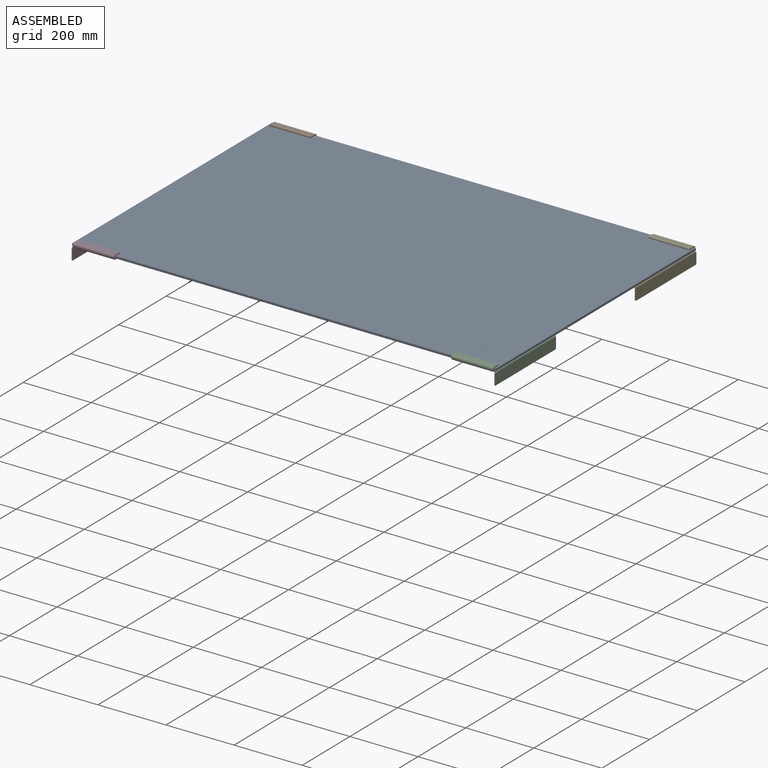
[diagram: assembled view]
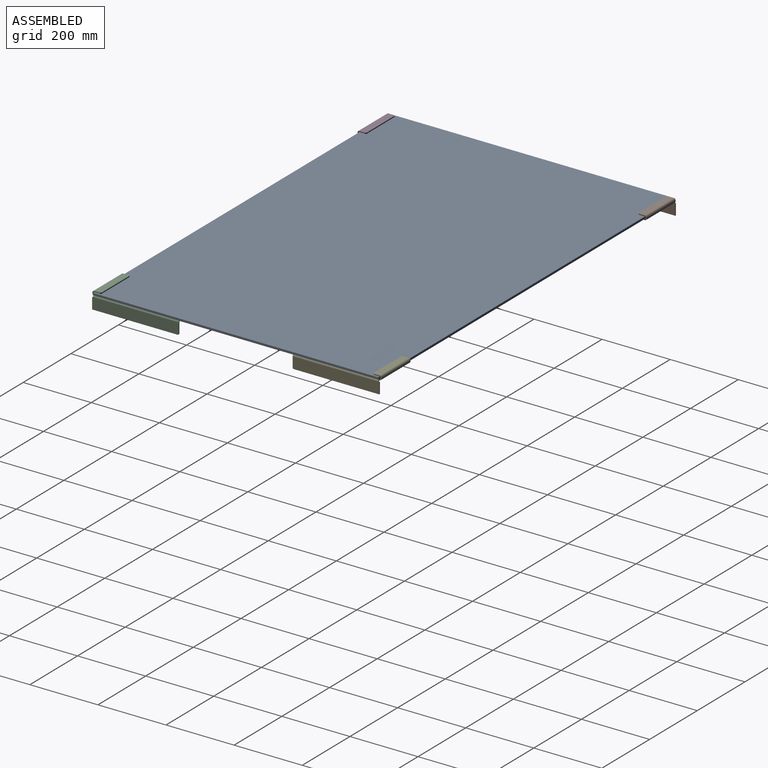
[diagram: assembled view, second angle]
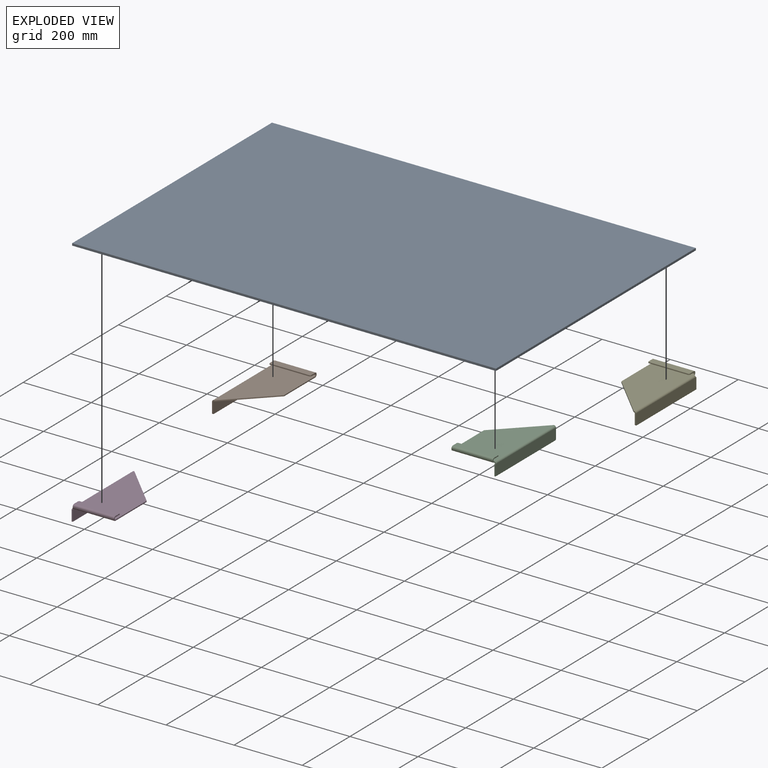
[diagram: exploded view]
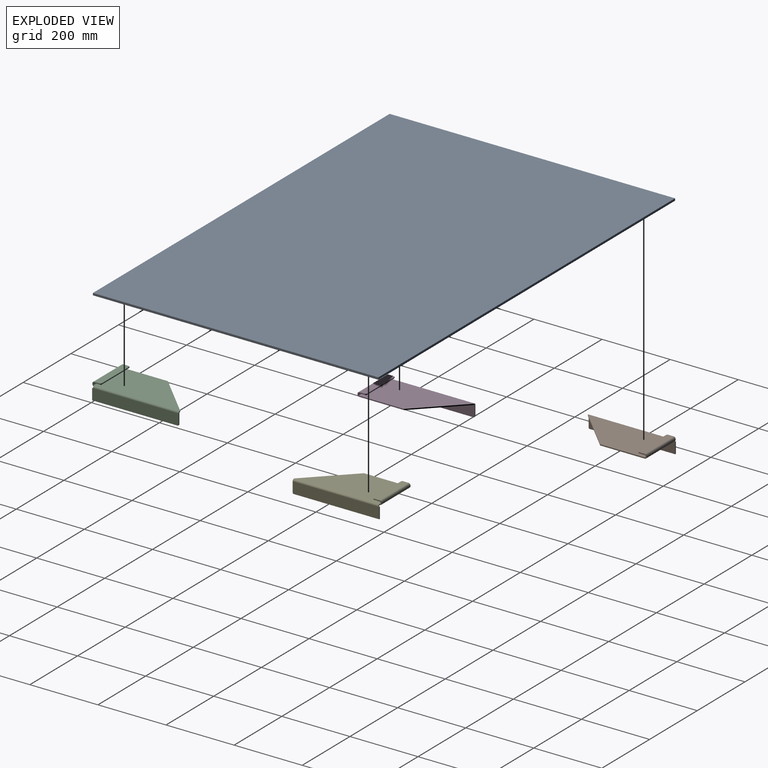
[diagram: exploded view, second angle]
ASSEMBLY  parts=5 mates=4
PART A: 6 faces, bbox 1244.6x838.2x6.4 mm
  f0: plane 838.2x6.35mm, normal (1,0,0), area 5322.6mm2, adj f1,f3,f4,f5
  f1: plane 1244.6x6.35mm, normal (0,1,0), area 7903.2mm2, adj f0,f2,f4,f5
  f2: plane 838.2x6.35mm, normal (-1,0,0), area 5322.6mm2, adj f1,f3,f4,f5
  f3: plane 1244.6x6.35mm, normal (0,-1,0), area 7903.2mm2, adj f0,f2,f4,f5
  f4: plane 1244.6x838.2mm, normal (0,0,1), area 1043223.7mm2, adj f0,f1,f2,f3
  f5: plane 1244.6x838.2mm, normal (0,0,-1), area 1043223.7mm2, adj f0,f1,f2,f3
PART B: 35 faces, bbox 127x257.2x47.6 mm
  f0: plane 131.06x3.18mm, normal (1,0,0), area 416.1mm2, adj f2,f3,f4,f32
  f1: plane 3.18x0.89mm, normal (0,-1,0), area 2.8mm2, adj f2,f3,f4,f13
  f2: plane 251.71x121.54mm, normal (0,0,-1), area 23314.9mm2, adj f0,f1,f4,f15,f33
  f3: plane 251.71x121.54mm, normal (0,0,1), area 23314.9mm2, adj f0,f1,f4,f14,f34
  f4: plane 120.65x120.65mm, normal (0.71,-0.71,0), area 541.7mm2, adj f0,f1,f2,f3
  f5: plane 250.83x3.18mm, normal (0,0,-1), area 796.4mm2, adj f6,f9,f10,f11
  f6: plane 32.64x3.18mm, normal (0,1,0), area 103.6mm2, adj f5,f7,f9,f10
  f7: plane 3.18x2.29mm, normal (0,0,1), area 7.3mm2, adj f6,f9,f10,f12
  f8: plane 29.46x3.18mm, normal (0,-1,0), area 93.5mm2, adj f9,f10,f11,f13
  f9: plane 254x32.64mm, normal (1,0,0), area 8288.1mm2, adj f5,f6,f7,f8,f11,f15
  f10: plane 254x32.64mm, normal (-1,0,0), area 8288.1mm2, adj f5,f6,f7,f8,f11,f14
  f11: cylinder r=3.17mm len=3.18mm, axis (1,0,0), area 15.8mm2, adj f5,f8,f9,f10
  f12: plane 5.46x5.46mm, normal (0,1,0), area 19.3mm2, adj f7,f14,f15,f31
  f13: plane 5.46x5.46mm, normal (0,-1,0), area 19.3mm2, adj f1,f8,f14,f15
  f14: cylinder r=5.46mm len=251.71mm, axis (0,1,0), area 2159.2mm2, adj f3,f10,f12,f13
  f15: cylinder r=2.29mm len=251.71mm, axis (0,1,0), area 903.9mm2, adj f2,f9,f12,f13
  f16: plane 3.18x1.78mm, normal (1,0,0), area 5.6mm2, adj f18,f19,f28,f32
  f17: plane 3.18x1.78mm, normal (-1,0,0), area 5.6mm2, adj f18,f19,f27,f31
  f18: plane 121.54x1.78mm, normal (0,1,0), area 216.1mm2, adj f16,f17,f29,f33
  f19: plane 121.54x1.78mm, normal (0,-1,0), area 216.1mm2, adj f16,f17,f30,f34
  f20: plane 115.19x3.18mm, normal (0,-1,0), area 365.7mm2, adj f23,f24,f25,f26
  f21: plane 16.76x3.18mm, normal (1,0,0), area 53.2mm2, adj f23,f24,f25,f28
  f22: plane 16.76x3.18mm, normal (-1,0,0), area 53.2mm2, adj f23,f24,f26,f27
  f23: plane 121.54x19.94mm, normal (0,0,1), area 2419mm2, adj f20,f21,f22,f25,f26,f29
  f24: plane 121.54x19.94mm, normal (0,0,-1), area 2419mm2, adj f20,f21,f22,f25,f26,f30
  f25: cylinder r=3.17mm len=3.18mm, axis (0,0,1), area 15.8mm2, adj f20,f21,f23,f24
  f26: cylinder r=3.17mm len=3.18mm, axis (0,0,1), area 15.8mm2, adj f20,f22,f23,f24
  f27: plane 5.46x5.46mm, normal (-1,0,0), area 19.3mm2, adj f17,f22,f29,f30
  f28: plane 5.46x5.46mm, normal (1,0,0), area 19.3mm2, adj f16,f21,f29,f30
  f29: cylinder r=5.46mm len=121.54mm, axis (-1,0,0), area 1042.6mm2, adj f18,f23,f27,f28
  f30: cylinder r=2.29mm len=121.54mm, axis (-1,0,0), area 436.4mm2, adj f19,f24,f27,f28
  f31: plane 5.46x5.46mm, normal (-1,0,0), area 19.3mm2, adj f12,f17,f33,f34
  f32: plane 5.46x5.46mm, normal (1,0,0), area 19.3mm2, adj f0,f16,f33,f34
  f33: cylinder r=5.46mm len=121.54mm, axis (-1,0,0), area 1042.6mm2, adj f2,f18,f31,f32
  f34: cylinder r=2.29mm len=121.54mm, axis (-1,0,0), area 436.4mm2, adj f3,f19,f31,f32
PART C: same geometry as B
PART D: 35 faces, bbox 127x257.2x47.6 mm
  f0: plane 3.18x0.89mm, normal (0,1,0), area 2.8mm2, adj f2,f3,f4,f13
  f1: plane 131.06x3.18mm, normal (1,0,0), area 416.1mm2, adj f2,f3,f4,f32
  f2: plane 251.71x121.54mm, normal (0,0,-1), area 23314.9mm2, adj f0,f1,f4,f15,f33
  f3: plane 251.71x121.54mm, normal (0,0,1), area 23314.9mm2, adj f0,f1,f4,f14,f34
  f4: plane 120.65x120.65mm, normal (0.71,0.71,0), area 541.7mm2, adj f0,f1,f2,f3
  f5: plane 3.18x2.29mm, normal (0,0,1), area 7.3mm2, adj f8,f9,f10,f12
  f6: plane 250.83x3.18mm, normal (0,0,-1), area 796.4mm2, adj f8,f9,f10,f11
  f7: plane 29.46x3.18mm, normal (0,1,0), area 93.5mm2, adj f9,f10,f11,f13
  f8: plane 32.64x3.18mm, normal (0,-1,0), area 103.6mm2, adj f5,f6,f9,f10
  f9: plane 254x32.64mm, normal (1,0,0), area 8288.1mm2, adj f5,f6,f7,f8,f11,f15
  f10: plane 254x32.64mm, normal (-1,0,0), area 8288.1mm2, adj f5,f6,f7,f8,f11,f14
  f11: cylinder r=3.17mm len=3.18mm, axis (1,0,0), area 15.8mm2, adj f6,f7,f9,f10
  f12: plane 5.46x5.46mm, normal (0,-1,0), area 19.3mm2, adj f5,f14,f15,f31
  f13: plane 5.46x5.46mm, normal (0,1,0), area 19.3mm2, adj f0,f7,f14,f15
  f14: cylinder r=5.46mm len=251.71mm, axis (0,-1,0), area 2159.2mm2, adj f3,f10,f12,f13
  f15: cylinder r=2.29mm len=251.71mm, axis (0,-1,0), area 903.9mm2, adj f2,f9,f12,f13
  f16: plane 3.18x1.78mm, normal (-1,0,0), area 5.6mm2, adj f18,f19,f27,f31
  f17: plane 3.18x1.78mm, normal (1,0,0), area 5.6mm2, adj f18,f19,f28,f32
  f18: plane 121.54x1.78mm, normal (0,-1,0), area 216.1mm2, adj f16,f17,f29,f33
  f19: plane 121.54x1.78mm, normal (0,1,0), area 216.1mm2, adj f16,f17,f30,f34
  f20: plane 115.19x3.18mm, normal (0,1,0), area 365.7mm2, adj f23,f24,f25,f26
  f21: plane 16.76x3.18mm, normal (-1,0,0), area 53.2mm2, adj f23,f24,f26,f27
  f22: plane 16.76x3.18mm, normal (1,0,0), area 53.2mm2, adj f23,f24,f25,f28
  f23: plane 121.54x19.94mm, normal (0,0,1), area 2419mm2, adj f20,f21,f22,f25,f26,f29
  f24: plane 121.54x19.94mm, normal (0,0,-1), area 2419mm2, adj f20,f21,f22,f25,f26,f30
  f25: cylinder r=3.17mm len=3.18mm, axis (0,0,1), area 15.8mm2, adj f20,f22,f23,f24
  f26: cylinder r=3.17mm len=3.18mm, axis (0,0,1), area 15.8mm2, adj f20,f21,f23,f24
  f27: plane 5.46x5.46mm, normal (-1,0,0), area 19.3mm2, adj f16,f21,f29,f30
  f28: plane 5.46x5.46mm, normal (1,0,0), area 19.3mm2, adj f17,f22,f29,f30
  f29: cylinder r=5.46mm len=121.54mm, axis (-1,0,0), area 1042.6mm2, adj f18,f23,f27,f28
  f30: cylinder r=2.29mm len=121.54mm, axis (-1,0,0), area 436.4mm2, adj f19,f24,f27,f28
  f31: plane 5.46x5.46mm, normal (-1,0,0), area 19.3mm2, adj f12,f16,f33,f34
  f32: plane 5.46x5.46mm, normal (1,0,0), area 19.3mm2, adj f1,f17,f33,f34
  f33: cylinder r=5.46mm len=121.54mm, axis (-1,0,0), area 1042.6mm2, adj f2,f18,f31,f32
  f34: cylinder r=2.29mm len=121.54mm, axis (-1,0,0), area 436.4mm2, adj f3,f19,f31,f32
PART E: same geometry as D
PLACE A at identity
PLACE B t=(-558.8,294.39,-3.18)mm
PLACE C rot(axis=(0,0,1),180deg) t=(558.8,-294.39,-3.18)mm
PLACE D t=(-558.8,-14.99,-3.18)mm
PLACE E rot(axis=(0,0,-1),180deg) t=(558.8,14.99,-3.18)mm
MATE fastened E.f3 <-> A.f5  axis (0,0,1) through (616.84,419.1,0)mm
MATE fastened C.f3 <-> A.f5  axis (0,0,1) through (616.84,-419.1,0)mm
MATE fastened A.f5 <-> B.f3  axis (0,0,-1) through (-622.3,419.1,0)mm
MATE fastened D.f3 <-> A.f5  axis (0,0,1) through (-616.84,-419.1,0)mm
